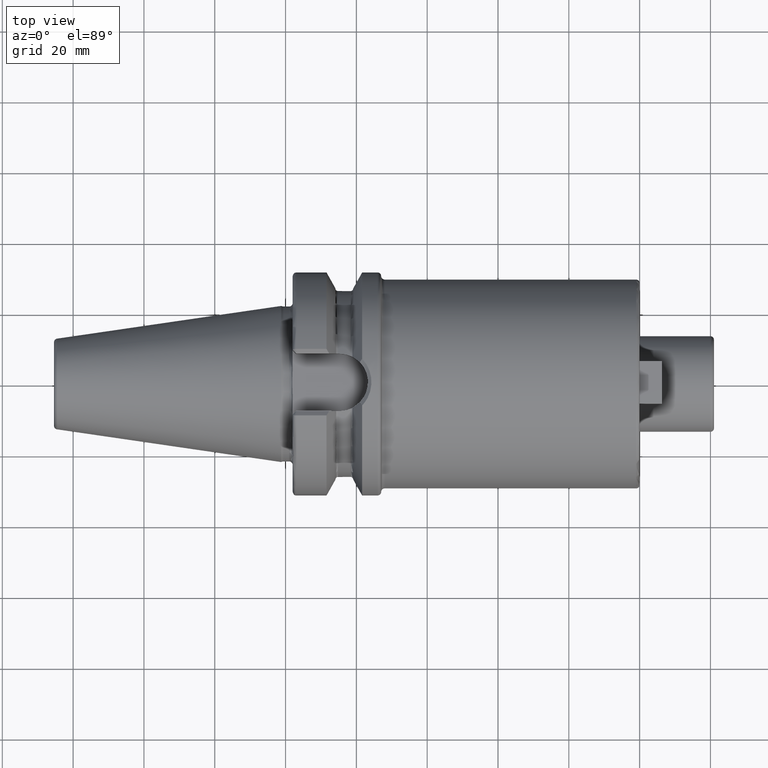
[diagram: clean part render]
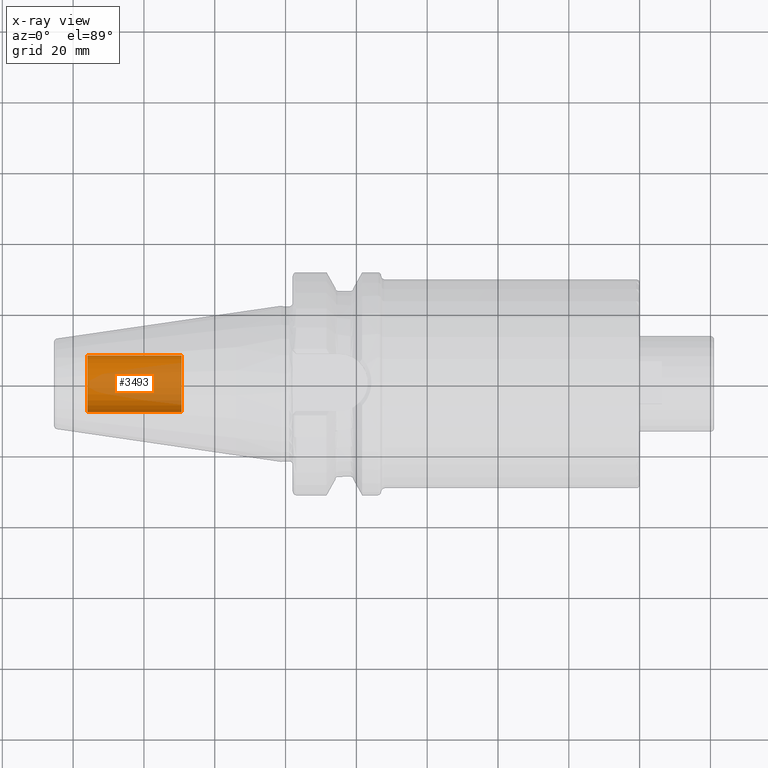
[diagram: x-ray — body ghosted, one internal face saturated and labeled with its STEP entity id]
A machine part, top view, then the same camera in x-ray: the body is ghosted and one INTERNAL B-rep face — a face not visible from any outside direction — is saturated and labeled: STEP entity #3493.
In plain terms, the highlighted cylindrical surface (edge-blend (fillet) strip) has radius 8.0028 mm, axis along (1, 0, 0).
Its self-contained STEP definition (entity closure, byte-faithful):
#3428=CARTESIAN_POINT('',(-5.595E1,0.E0,0.E0));
#3429=DIRECTION('',(-1.E0,0.E0,0.E0));
#3430=DIRECTION('',(0.E0,1.E0,0.E0));
#3431=AXIS2_PLACEMENT_3D('',#3428,#3429,#3430);
#3433=DIRECTION('',(1.E0,0.E0,0.E0));
#3434=VECTOR('',#3433,2.655E1);
#3435=CARTESIAN_POINT('',(-5.595E1,-8.00275E0,0.E0));
#3436=LINE('',#3435,#3434);
#3442=DIRECTION('',(1.E0,0.E0,0.E0));
#3443=VECTOR('',#3442,2.655E1);
#3444=CARTESIAN_POINT('',(-5.595E1,8.00275E0,0.E0));
#3445=LINE('',#3444,#3443);
#3451=CARTESIAN_POINT('',(-2.94E1,0.E0,0.E0));
#3452=DIRECTION('',(1.E0,0.E0,0.E0));
#3453=DIRECTION('',(0.E0,-1.E0,0.E0));
#3454=AXIS2_PLACEMENT_3D('',#3451,#3452,#3453);
#3466=CARTESIAN_POINT('',(-5.595E1,8.00275E0,0.E0));
#3467=CARTESIAN_POINT('',(-5.595E1,-8.00275E0,0.E0));
#3468=VERTEX_POINT('',#3466);
#3469=VERTEX_POINT('',#3467);
#3470=CARTESIAN_POINT('',(-2.94E1,8.00275E0,0.E0));
#3471=CARTESIAN_POINT('',(-2.94E1,-8.00275E0,0.E0));
#3472=VERTEX_POINT('',#3470);
#3473=VERTEX_POINT('',#3471);
#3478=CARTESIAN_POINT('',(-5.595E1,0.E0,0.E0));
#3479=DIRECTION('',(1.E0,0.E0,0.E0));
#3480=DIRECTION('',(0.E0,1.E0,0.E0));
#3481=AXIS2_PLACEMENT_3D('',#3478,#3479,#3480);
#3482=CYLINDRICAL_SURFACE('',#3481,8.00275E0);
#3484=ORIENTED_EDGE('',*,*,#3483,.T.);
#3486=ORIENTED_EDGE('',*,*,#3485,.T.);
#3488=ORIENTED_EDGE('',*,*,#3487,.T.);
#3490=ORIENTED_EDGE('',*,*,#3489,.F.);
#3491=EDGE_LOOP('',(#3484,#3486,#3488,#3490));
#3492=FACE_OUTER_BOUND('',#3491,.F.);
#3493=ADVANCED_FACE('',(#3492),#3482,.T.);
#3432=CIRCLE('',#3431,8.00275E0);
#3455=CIRCLE('',#3454,8.00275E0);
#3483=EDGE_CURVE('',#3468,#3469,#3432,.T.);
#3485=EDGE_CURVE('',#3469,#3473,#3436,.T.);
#3487=EDGE_CURVE('',#3473,#3472,#3455,.T.);
#3489=EDGE_CURVE('',#3468,#3472,#3445,.T.);